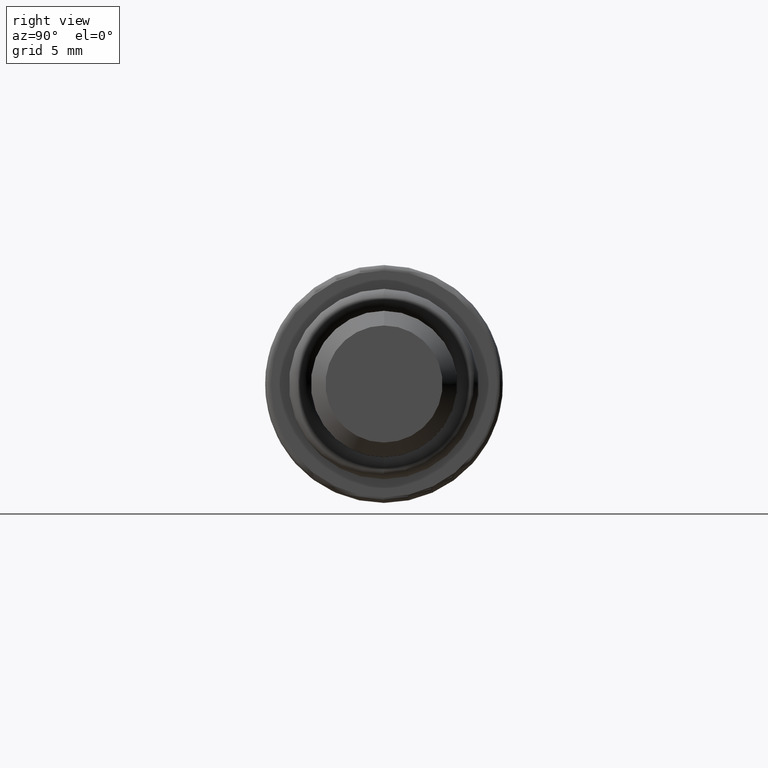
[diagram: clean part render]
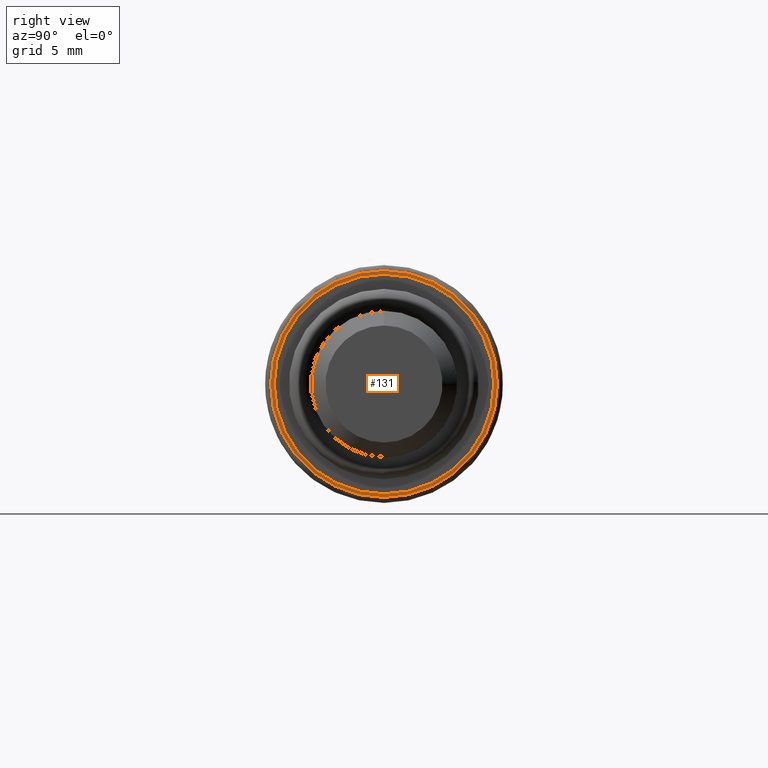
[diagram: same view with one face highlighted and labeled with its STEP entity id]
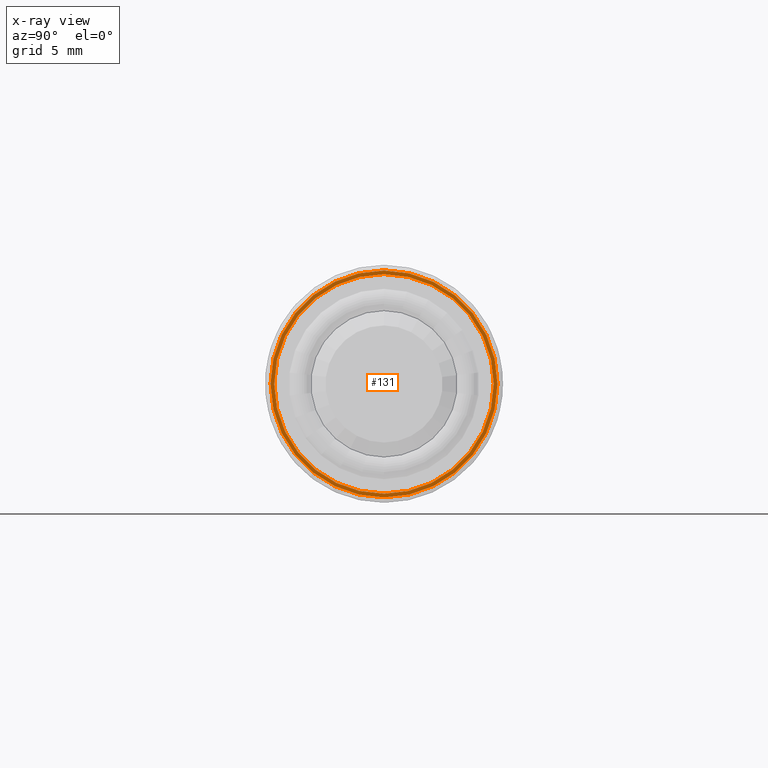
[diagram: x-ray of the same camera — body ghosted, the highlighted face saturated]
A machine part, right view. The second image highlights one B-rep face of the part: STEP entity #131.
The next image is the same camera in x-ray: the body ghosted, the highlighted face saturated — about 0% of this face is hidden behind the body in this view.
In plain terms, the highlighted planar face has unit normal (1, 0, 0).
Its self-contained STEP definition (entity closure, byte-faithful):
#1 = CARTESIAN_POINT ( 'NONE',  ( 0.0000000000000000000, 7.776507174585691200E-016, 6.199999999999999300 ) ) ;
#4 = DIRECTION ( 'NONE',  ( 0.0000000000000000000, 0.0000000000000000000, -1.000000000000000000 ) ) ;
#48 = CARTESIAN_POINT ( 'NONE',  ( 0.0000000000000000000, 0.0000000000000000000, 0.0000000000000000000 ) ) ;
#55 = CIRCLE ( 'NONE', #545, 6.000000000000000900 ) ;
#65 = EDGE_LOOP ( 'NONE', ( #236, #465 ) ) ;
#66 = CARTESIAN_POINT ( 'NONE',  ( 0.0000000000000000000, 0.0000000000000000000, 0.0000000000000000000 ) ) ;
#131 = ADVANCED_FACE ( 'NONE', ( #184, #408 ), #606, .T. ) ;
#133 = VERTEX_POINT ( 'NONE', #1 ) ;
#134 = CARTESIAN_POINT ( 'NONE',  ( 0.0000000000000000000, 0.0000000000000000000, 0.0000000000000000000 ) ) ;
#135 = ORIENTED_EDGE ( 'NONE', *, *, #284, .F. ) ;
#142 = DIRECTION ( 'NONE',  ( 1.000000000000000000, 0.0000000000000000000, 0.0000000000000000000 ) ) ;
#178 = AXIS2_PLACEMENT_3D ( 'NONE', #134, #697, #773 ) ;
#184 = FACE_OUTER_BOUND ( 'NONE', #65, .T. ) ;
#208 = EDGE_CURVE ( 'NONE', #718, #133, #372, .T. ) ;
#217 = CARTESIAN_POINT ( 'NONE',  ( 0.0000000000000000000, 0.0000000000000000000, -6.000000000000000900 ) ) ;
#236 = ORIENTED_EDGE ( 'NONE', *, *, #208, .T. ) ;
#268 = EDGE_CURVE ( 'NONE', #133, #718, #311, .T. ) ;
#275 = ORIENTED_EDGE ( 'NONE', *, *, #655, .F. ) ;
#284 = EDGE_CURVE ( 'NONE', #486, #366, #55, .T. ) ;
#311 = CIRCLE ( 'NONE', #338, 6.199999999999999300 ) ;
#323 = CARTESIAN_POINT ( 'NONE',  ( 0.0000000000000000000, 0.0000000000000000000, 0.0000000000000000000 ) ) ;
#338 = AXIS2_PLACEMENT_3D ( 'NONE', #66, #418, #426 ) ;
#366 = VERTEX_POINT ( 'NONE', #728 ) ;
#372 = CIRCLE ( 'NONE', #688, 6.199999999999999300 ) ;
#408 = FACE_BOUND ( 'NONE', #644, .T. ) ;
#418 = DIRECTION ( 'NONE',  ( 1.000000000000000000, 0.0000000000000000000, 0.0000000000000000000 ) ) ;
#426 = DIRECTION ( 'NONE',  ( 0.0000000000000000000, 0.0000000000000000000, -1.000000000000000000 ) ) ;
#465 = ORIENTED_EDGE ( 'NONE', *, *, #268, .T. ) ;
#486 = VERTEX_POINT ( 'NONE', #217 ) ;
#493 = CARTESIAN_POINT ( 'NONE',  ( 0.0000000000000000000, 0.0000000000000000000, 0.0000000000000000000 ) ) ;
#511 = DIRECTION ( 'NONE',  ( 0.0000000000000000000, 0.0000000000000000000, -1.000000000000000000 ) ) ;
#545 = AXIS2_PLACEMENT_3D ( 'NONE', #493, #548, #559 ) ;
#548 = DIRECTION ( 'NONE',  ( 1.000000000000000000, 0.0000000000000000000, 0.0000000000000000000 ) ) ;
#559 = DIRECTION ( 'NONE',  ( 0.0000000000000000000, 0.0000000000000000000, -1.000000000000000000 ) ) ;
#561 = AXIS2_PLACEMENT_3D ( 'NONE', #48, #142, #511 ) ;
#606 = PLANE ( 'NONE',  #561 ) ;
#636 = DIRECTION ( 'NONE',  ( 1.000000000000000000, 0.0000000000000000000, 0.0000000000000000000 ) ) ;
#644 = EDGE_LOOP ( 'NONE', ( #135, #275 ) ) ;
#655 = EDGE_CURVE ( 'NONE', #366, #486, #720, .T. ) ;
#683 = CARTESIAN_POINT ( 'NONE',  ( 0.0000000000000000000, 0.0000000000000000000, -6.199999999999999300 ) ) ;
#688 = AXIS2_PLACEMENT_3D ( 'NONE', #323, #636, #4 ) ;
#697 = DIRECTION ( 'NONE',  ( 1.000000000000000000, 0.0000000000000000000, 0.0000000000000000000 ) ) ;
#718 = VERTEX_POINT ( 'NONE', #683 ) ;
#720 = CIRCLE ( 'NONE', #178, 6.000000000000000900 ) ;
#728 = CARTESIAN_POINT ( 'NONE',  ( 0.0000000000000000000, 7.347880794884120700E-016, 6.000000000000000900 ) ) ;
#773 = DIRECTION ( 'NONE',  ( 0.0000000000000000000, 0.0000000000000000000, -1.000000000000000000 ) ) ;